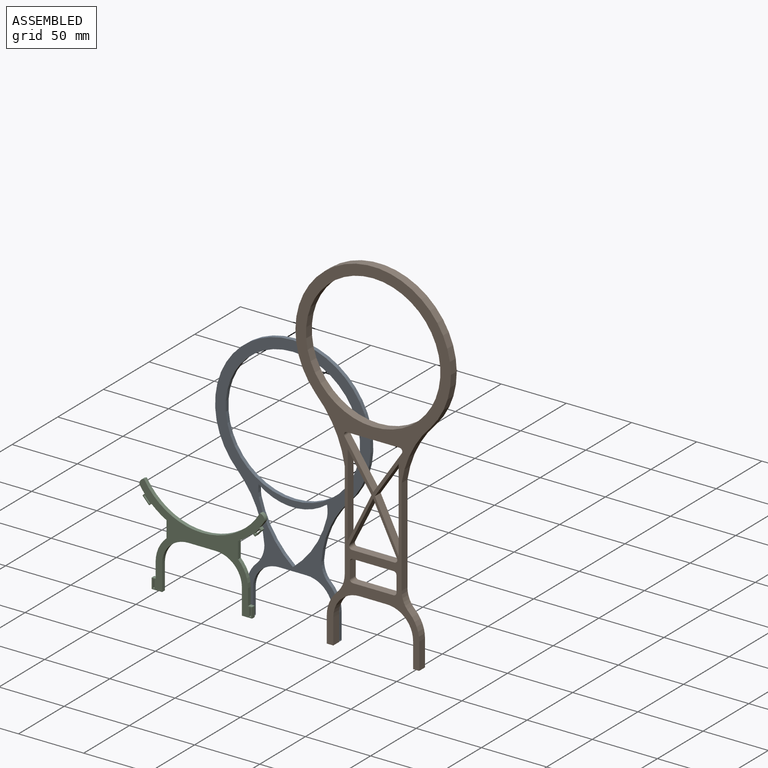
[diagram: assembled view]
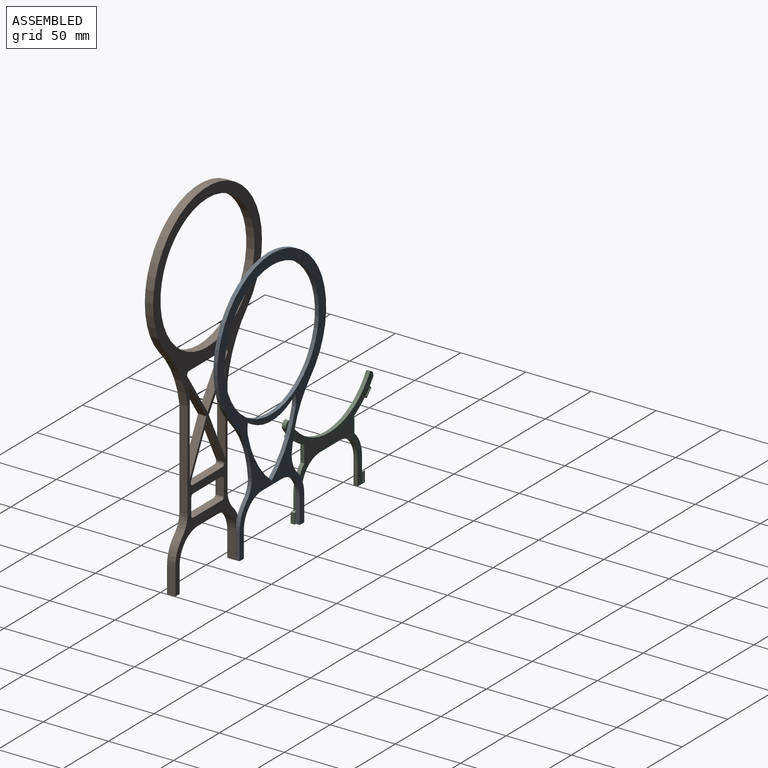
[diagram: assembled view, second angle]
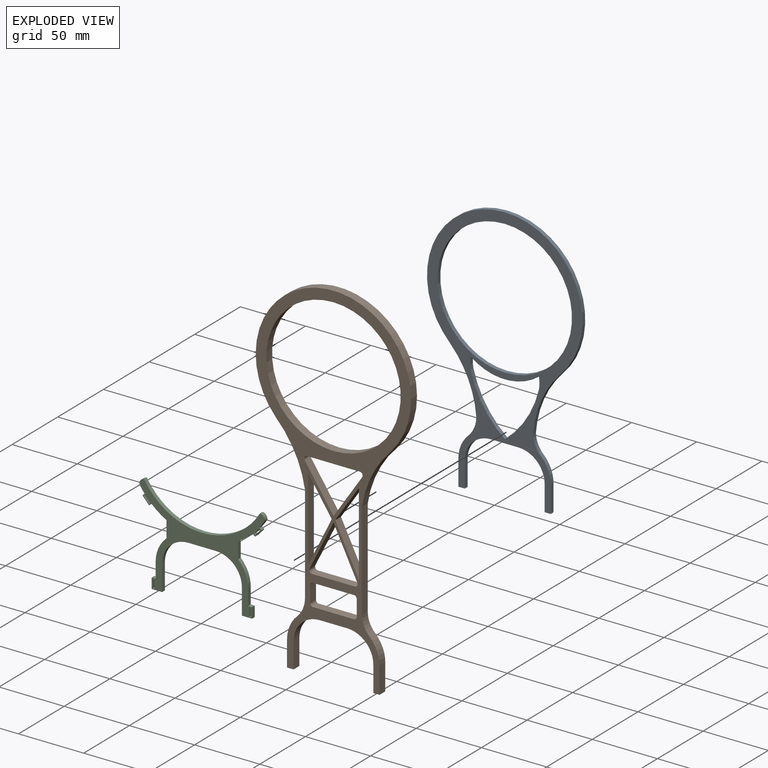
[diagram: exploded view]
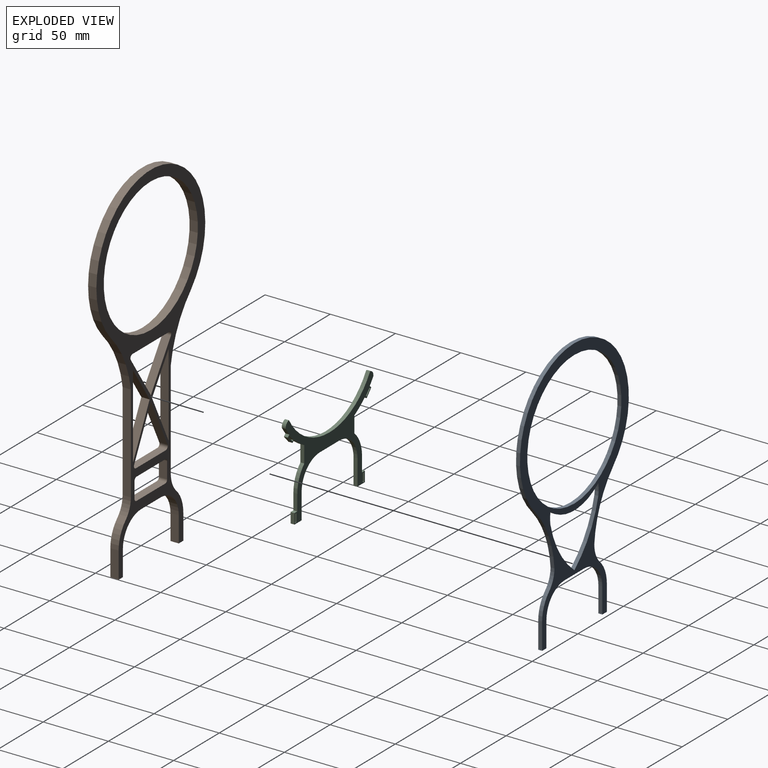
[diagram: exploded view, second angle]
ASSEMBLY  parts=3 mates=2
PART A: 28 faces, bbox 119.3x3x199.8 mm
  f0: plane 19.52x3mm, normal (-1,0,0), area 57.5mm2, adj f10,f11,f22,f23,f26,f27
  f1: plane 20.24x3mm, normal (1,0,0), area 59.7mm2, adj f11,f12,f22,f23,f26,f27
  f2: plane 19.52x3mm, normal (-1,0,0), area 57.5mm2, adj f18,f19,f22,f23,f24,f25
  f3: plane 19.52x3mm, normal (1,0,0), area 57.5mm2, adj f8,f19,f22,f23,f24,f25
  f4: cylinder r=76.02mm len=41.47mm, axis (0,1,0), area 149.8mm2, adj f5,f20,f22,f23
  f5: cylinder r=25.07mm len=8.91mm, axis (0,1,0), area 26.9mm2, adj f4,f6,f22,f23
  f6: cylinder r=43mm len=52.42mm, axis (0,1,0), area 169.1mm2, adj f5,f7,f22,f23
  f7: cylinder r=25.07mm len=8.91mm, axis (0,1,0), area 26.9mm2, adj f6,f20,f22,f23
  f8: cylinder r=20mm len=20mm, axis (0,1,0), area 94.2mm2, adj f3,f9,f22,f23
  f9: plane 21.2x3mm, normal (0,0,-1), area 63.6mm2, adj f8,f10,f22,f23
  f10: cylinder r=20mm len=20mm, axis (0,1,0), area 94.2mm2, adj f0,f9,f22,f23
  f11: plane 4.69x3mm, normal (0,0,-1), area 14.1mm2, adj f0,f1,f22,f23
  f12: cylinder r=25mm len=18mm, axis (0,1,0), area 60.3mm2, adj f1,f13,f22,f23
  f13: cylinder r=19mm len=13.68mm, axis (0,1,0), area 45.8mm2, adj f12,f14,f22,f23
  f14: cylinder r=75.5mm len=46.06mm, axis (0,1,0), area 154mm2, adj f13,f15,f22,f23
  f15: cylinder r=59.64mm len=119.28mm, axis (0,1,0), area 843.4mm2, adj f14,f16,f22,f23
  f16: cylinder r=75.5mm len=46.06mm, axis (0,1,0), area 154mm2, adj f15,f17,f22,f23
  f17: cylinder r=20mm len=14.4mm, axis (0,1,0), area 48.2mm2, adj f16,f18,f22,f23
  f18: cylinder r=25mm len=18mm, axis (0,1,0), area 60.3mm2, adj f2,f17,f22,f23
  f19: plane 5x3mm, normal (0,0,-1), area 15mm2, adj f2,f3,f22,f23
  f20: cylinder r=76.02mm len=41.47mm, axis (0,1,0), area 149.8mm2, adj f4,f7,f22,f23
  f21: cylinder r=51.55mm len=103.11mm, axis (0,1,0), area 971.8mm2, adj f22,f23
  f22: plane 199.82x119.28mm, normal (0,-1,0), area 3977mm2, adj f0,f1,f2,f3,f4,f5,f6,f7
  f23: plane 199.82x119.28mm, normal (0,1,0), area 3977mm2, adj f0,f1,f2,f3,f4,f5,f6,f7
  f24: cylinder r=0.41mm len=5mm, axis (1,0,0), area 12.8mm2, adj f2,f3
  f25: cylinder r=0.41mm len=5mm, axis (1,0,0), area 12.8mm2, adj f2,f3
  f26: cylinder r=0.41mm len=4.69mm, axis (1,0,0), area 12mm2, adj f0,f1
  f27: cylinder r=0.41mm len=4.69mm, axis (1,0,0), area 12mm2, adj f0,f1
PART B: 45 faces, bbox 119.3x6.4x270.8 mm
  f0: cylinder r=80.65mm len=44.38mm, axis (0,1,0), area 320.8mm2, adj f1,f42,f43,f44
  f1: cylinder r=59.64mm len=119.28mm, axis (0,1,0), area 1747.7mm2, adj f0,f2,f43,f44
  f2: cylinder r=80.65mm len=44.38mm, axis (0,1,0), area 320.8mm2, adj f1,f3,f43,f44
  f3: plane 74.81x6.35mm, normal (-1,0,0), area 475mm2, adj f2,f4,f43,f44
  f4: cylinder r=20mm len=14.4mm, axis (0,1,0), area 102.1mm2, adj f3,f5,f43,f44
  f5: cylinder r=25mm len=18mm, axis (0,1,0), area 127.6mm2, adj f4,f6,f43,f44
  f6: plane 19.52x6.35mm, normal (-1,0,0), area 124mm2, adj f5,f7,f43,f44
  f7: plane 6.35x5mm, normal (0,0,-1), area 31.8mm2, adj f6,f8,f43,f44
  f8: plane 19.52x6.35mm, normal (1,0,0), area 124mm2, adj f7,f9,f43,f44
  f9: cylinder r=20mm len=20mm, axis (0,1,0), area 199.5mm2, adj f8,f10,f43,f44
  f10: plane 21.2x6.35mm, normal (0,0,-1), area 134.6mm2, adj f9,f11,f43,f44
  f11: cylinder r=20mm len=20mm, axis (0,1,0), area 199.5mm2, adj f10,f12,f43,f44
  f12: plane 19.52x6.35mm, normal (-1,0,0), area 124mm2, adj f11,f13,f43,f44
  f13: plane 6.35x4.69mm, normal (0,0,-1), area 29.8mm2, adj f12,f14,f43,f44
  f14: plane 20.24x6.35mm, normal (1,0,0), area 128.5mm2, adj f13,f15,f43,f44
  f15: cylinder r=25mm len=18mm, axis (0,1,0), area 127.6mm2, adj f14,f16,f43,f44
  f16: cylinder r=19mm len=13.68mm, axis (0,1,0), area 97mm2, adj f15,f42,f43,f44
  f17: cylinder r=2.19mm len=6.35mm, axis (0,1,0), area 30.1mm2, adj f18,f36,f43,f44
  f18: plane 32.8x21.97mm, normal (-0.83,0,0.56), area 250.7mm2, adj f17,f19,f43,f44
  f19: plane 32.8x21.97mm, normal (0.83,0,0.56), area 250.7mm2, adj f18,f20,f43,f44
  f20: cylinder r=2.19mm len=6.35mm, axis (0,1,0), area 30.1mm2, adj f19,f36,f43,f44
  f21: cylinder r=2.19mm len=6.35mm, axis (0,1,0), area 21.9mm2, adj f22,f37,f43,f44
  f22: plane 31.3x6.35mm, normal (0,0,-1), area 198.8mm2, adj f21,f23,f43,f44
  f23: cylinder r=2.19mm len=6.35mm, axis (0,1,0), area 21.9mm2, adj f22,f24,f43,f44
  f24: plane 12.39x6.35mm, normal (-1,0,0), area 78.7mm2, adj f23,f25,f43,f44
  f25: cylinder r=2.19mm len=6.35mm, axis (0,1,0), area 21.9mm2, adj f24,f26,f43,f44
  f26: plane 31.3x6.35mm, normal (0,0,1), area 198.8mm2, adj f25,f27,f43,f44
  f27: cylinder r=2.19mm len=6.35mm, axis (0,1,0), area 21.9mm2, adj f26,f37,f43,f44
  f28: plane 27.18x18.21mm, normal (-0.83,0,-0.56), area 207.7mm2, adj f29,f38,f43,f44
  f29: plane 36.64x18.21mm, normal (-0.9,0,0.45), area 259.8mm2, adj f28,f38,f43,f44
  f30: plane 27.18x18.21mm, normal (0.83,0,-0.56), area 207.7mm2, adj f31,f39,f43,f44
  f31: plane 63.82x6.35mm, normal (-1,0,0), area 405.2mm2, adj f30,f39,f43,f44
  f32: cylinder r=2.19mm len=6.35mm, axis (0,1,0), area 28.3mm2, adj f33,f41,f43,f44
  f33: plane 32.63x6.35mm, normal (0,0,1), area 207.2mm2, adj f32,f34,f43,f44
  f34: cylinder r=2.19mm len=6.35mm, axis (0,1,0), area 28.3mm2, adj f33,f35,f43,f44
  f35: plane 36.78x18.28mm, normal (0.9,0,-0.45), area 260.8mm2, adj f34,f41,f43,f44
  f36: plane 40.3x6.35mm, normal (0,0,-1), area 255.9mm2, adj f17,f20,f43,f44
  f37: plane 12.39x6.35mm, normal (1,0,0), area 78.7mm2, adj f21,f27,f43,f44
  f38: plane 63.82x6.35mm, normal (1,0,0), area 405.2mm2, adj f28,f29,f43,f44
  f39: plane 36.64x18.21mm, normal (0.9,0,0.45), area 259.8mm2, adj f30,f31,f43,f44
  f40: cylinder r=51.55mm len=103.11mm, axis (0,1,0), area 2057mm2, adj f43,f44
  f41: plane 36.78x18.28mm, normal (-0.9,0,-0.45), area 260.8mm2, adj f32,f35,f43,f44
  f42: plane 74.81x6.35mm, normal (1,0,0), area 475mm2, adj f0,f16,f43,f44
  f43: plane 270.82x119.28mm, normal (0,-1,0), area 5165.1mm2, adj f0,f1,f2,f3,f4,f5,f6,f7
  f44: plane 270.82x119.28mm, normal (0,1,0), area 5165.1mm2, adj f0,f1,f2,f3,f4,f5,f6,f7
PART C: 52 faces, bbox 96x3x74.6 mm
  f0: plane 3x1.34mm, normal (0,0,1), area 4mm2, adj f1,f49,f50,f51
  f1: plane 6.33x3mm, normal (1,0,0), area 19mm2, adj f0,f2,f50,f51
  f2: plane 3x1.34mm, normal (0,0,-1), area 4mm2, adj f1,f49,f50,f51
  f3: plane 8.06x3mm, normal (0,0,-1), area 24.2mm2, adj f4,f45,f50,f51
  f4: plane 19.52x3mm, normal (1,0,0), area 58.6mm2, adj f3,f5,f50,f51
  f5: cylinder r=20mm len=20mm, axis (0,1,0), area 94.2mm2, adj f4,f6,f50,f51
  f6: plane 21.2x3mm, normal (0,0,-1), area 63.6mm2, adj f5,f7,f50,f51
  f7: cylinder r=20mm len=20mm, axis (0,1,0), area 94.2mm2, adj f6,f8,f50,f51
  f8: plane 19.52x3mm, normal (-1,0,0), area 58.6mm2, adj f7,f9,f50,f51
  f9: plane 7.75x3mm, normal (0,0,-1), area 23.3mm2, adj f8,f10,f50,f51
  f10: plane 7.94x3mm, normal (1,0,0), area 23.8mm2, adj f9,f11,f50,f51
  f11: plane 3.06x3mm, normal (0,0,1), area 9.2mm2, adj f10,f12,f50,f51
  f12: plane 12.3x3mm, normal (1,0,0), area 36.9mm2, adj f11,f13,f50,f51
  f13: cylinder r=25mm len=18mm, axis (0,1,0), area 60.3mm2, adj f12,f14,f50,f51
  f14: plane 12.71x3mm, normal (1,0,0), area 38.1mm2, adj f13,f15,f50,f51
  f15: cylinder r=57.03mm len=11.17mm, axis (0,1,0), area 41.5mm2, adj f14,f16,f50,f51
  f16: plane 3x1.52mm, normal (-0.68,0,-0.74), area 6.2mm2, adj f15,f17,f50,f51
  f17: cylinder r=0.37mm len=3mm, axis (0,1,0), area 1.8mm2, adj f16,f18,f50,f51
  f18: plane 4.99x4.6mm, normal (0.74,0,-0.68), area 20.4mm2, adj f17,f19,f50,f51
  f19: cylinder r=0.46mm len=3mm, axis (0,1,0), area 2.2mm2, adj f18,f20,f50,f51
  f20: plane 3x1.39mm, normal (0.68,0,0.74), area 5.7mm2, adj f19,f21,f50,f51
  f21: cylinder r=57.03mm len=5.39mm, axis (0,1,0), area 20mm2, adj f20,f22,f50,f51
  f22: cylinder r=4.03mm len=4.65mm, axis (0,1,0), area 19.7mm2, adj f21,f23,f50,f51
  f23: cylinder r=51.55mm len=88.82mm, axis (0,1,0), area 321.1mm2, adj f22,f24,f50,f51
  f24: cylinder r=4.03mm len=4.65mm, axis (0,1,0), area 19.7mm2, adj f23,f25,f50,f51
  f25: cylinder r=57.03mm len=5.39mm, axis (0,1,0), area 20mm2, adj f24,f26,f50,f51
  f26: plane 3x1.39mm, normal (-0.68,0,0.74), area 5.7mm2, adj f25,f27,f50,f51
  f27: cylinder r=0.46mm len=3mm, axis (0,1,0), area 2.2mm2, adj f26,f28,f50,f51
  f28: plane 4.99x4.6mm, normal (-0.74,0,-0.68), area 20.4mm2, adj f27,f29,f50,f51
  f29: cylinder r=0.37mm len=3mm, axis (0,1,0), area 1.8mm2, adj f28,f30,f50,f51
  f30: plane 3x1.52mm, normal (0.68,0,-0.74), area 6.2mm2, adj f29,f31,f50,f51
  f31: cylinder r=57.03mm len=11.59mm, axis (0,1,0), area 42.9mm2, adj f30,f32,f50,f51
  f32: plane 12.53x3mm, normal (-1,0,0), area 37.6mm2, adj f31,f33,f50,f51
  f33: cylinder r=25mm len=18.67mm, axis (0,1,0), area 63.2mm2, adj f32,f34,f50,f51
  f34: plane 11.58x3mm, normal (-1,0,0), area 34.7mm2, adj f33,f35,f50,f51
  f35: plane 3.06x3mm, normal (0,0,1), area 9.2mm2, adj f34,f45,f50,f51
  f36: plane 6.33x3mm, normal (-1,0,0), area 19mm2, adj f37,f46,f50,f51
  f37: plane 3x1.34mm, normal (0,0,1), area 4mm2, adj f36,f38,f50,f51
  f38: plane 6.33x3mm, normal (1,0,0), area 19mm2, adj f37,f46,f50,f51
  f39: plane 4.43x4.08mm, normal (0.74,0,-0.68), area 18.1mm2, adj f40,f47,f50,f51
  f40: plane 3x0.75mm, normal (-0.68,0,-0.74), area 3.1mm2, adj f39,f41,f50,f51
  f41: plane 4.43x4.08mm, normal (-0.74,0,0.68), area 18.1mm2, adj f40,f47,f50,f51
  f42: plane 3x0.75mm, normal (0.68,0,-0.74), area 3.1mm2, adj f43,f48,f50,f51
  f43: plane 4.43x4.08mm, normal (-0.74,0,-0.68), area 18.1mm2, adj f42,f44,f50,f51
  f44: plane 3x0.75mm, normal (-0.68,0,0.74), area 3.1mm2, adj f43,f48,f50,f51
  f45: plane 7.94x3mm, normal (-1,0,0), area 23.8mm2, adj f3,f35,f50,f51
  f46: plane 3x1.34mm, normal (0,0,-1), area 4mm2, adj f36,f38,f50,f51
  f47: plane 3x0.75mm, normal (0.68,0,0.74), area 3.1mm2, adj f39,f41,f50,f51
  f48: plane 4.43x4.08mm, normal (0.74,0,0.68), area 18.1mm2, adj f42,f44,f50,f51
  f49: plane 6.33x3mm, normal (-1,0,0), area 19mm2, adj f0,f2,f50,f51
  f50: plane 96.04x74.64mm, normal (0,-1,0), area 1472.4mm2, adj f0,f1,f2,f3,f4,f5,f6,f7
  f51: plane 96.04x74.64mm, normal (0,1,0), area 1472.4mm2, adj f0,f1,f2,f3,f4,f5,f6,f7
PLACE A t=(-42.07,20.8,-6.69)mm
PLACE B t=(23.97,17.8,-6.69)mm
PLACE C t=(-109.65,17.8,-6.69)mm
MATE fastened C.f51 <-> A.f22  axis (0,1,0) through (-75.17,17.8,-28.95)mm
MATE fastened A.f22 <-> B.f44  axis (0,-1,0) through (-9.13,17.8,-28.95)mm
